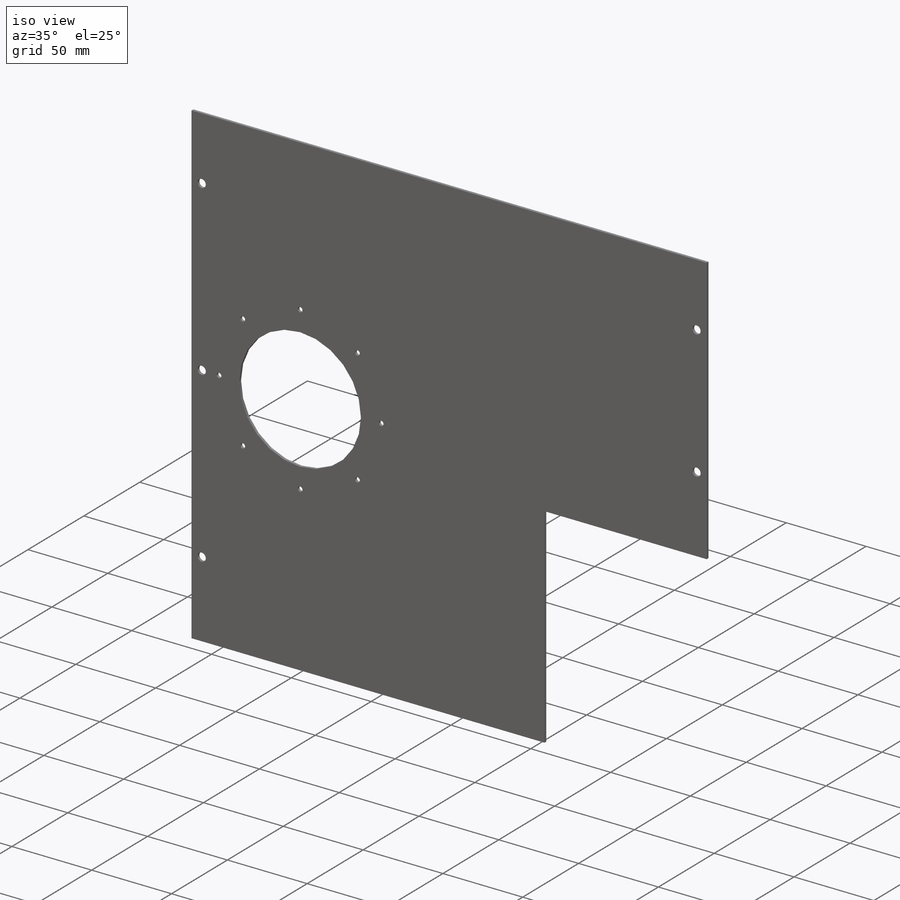
[diagram: iso view]
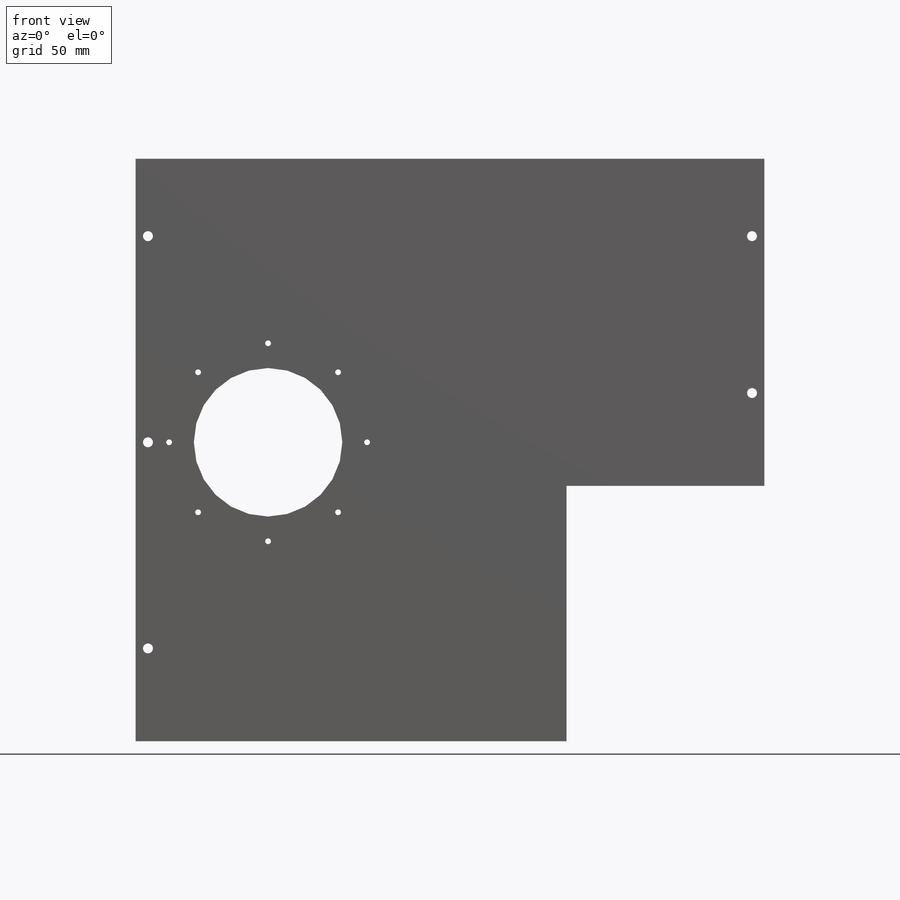
[diagram: front view]
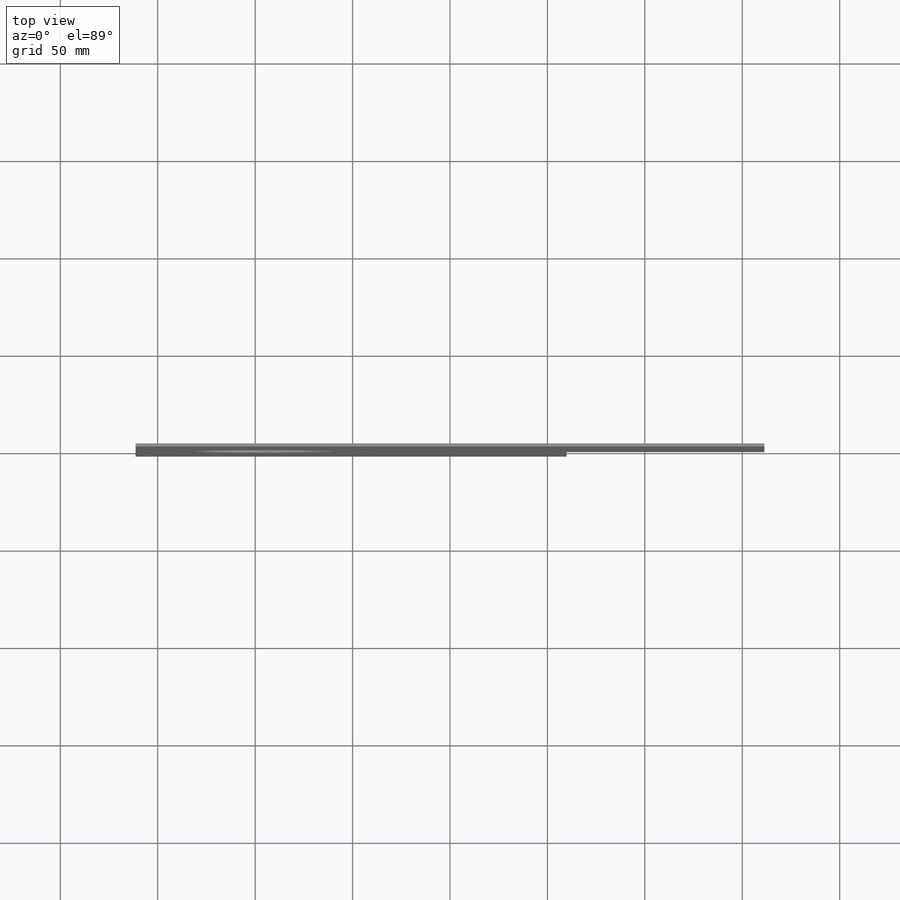
[diagram: top view]
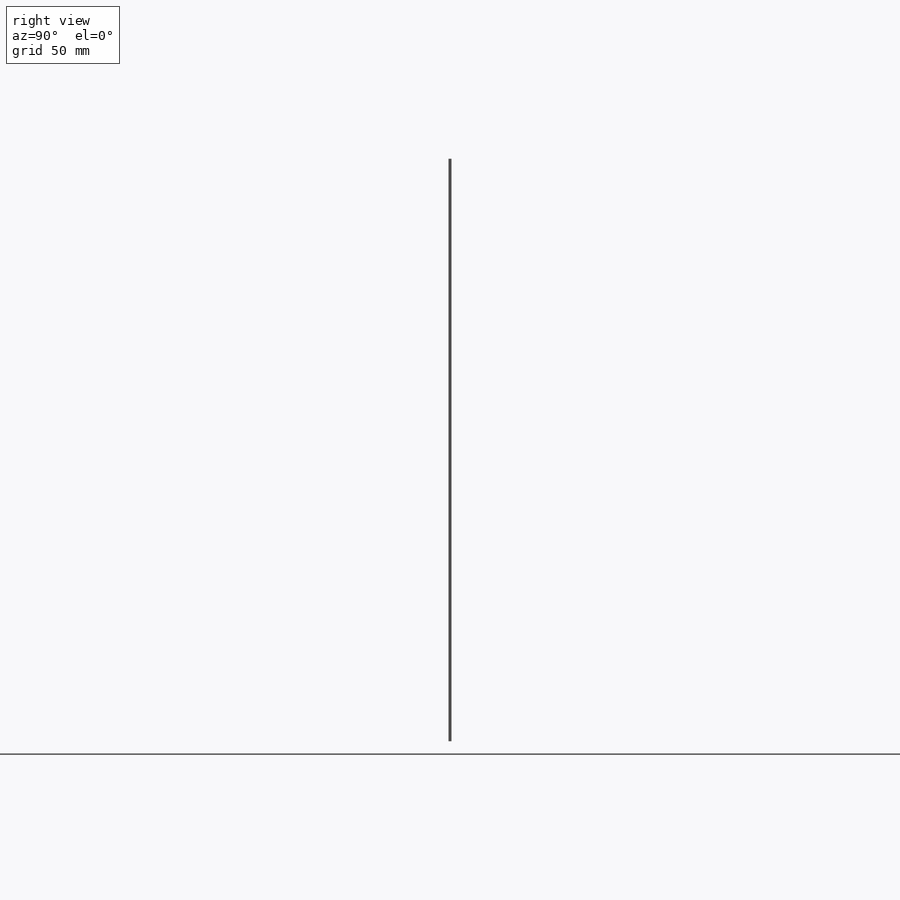
[diagram: right view]
SOLIDWORKS PART (.sldprt)
format: sldprt  version: not decoded by parser v0  size: 219,136 bytes
history: native  units: mm
features: sketch x7, hole x2, material x1, extrude x1, cut_extrude x1, pattern_circular x1 (+11 scaffold rows collapsed)
feature tree (24):
  scaffold x11  (default folders/planes/origin — collapsed)
  material  "6061-T6 (SS)"
  sketch  "Sketch1"  dims[D1=~298.896617mm D2=322.7254mm D3=131.064mm D4=101.6002mm D5=~153.410708mm]
  extrude  "Boss-Extrude1"  Depth=1.6002mm
  sketch  "Sketch2"  dims[D1=76.2mm D2=68.0mm]
  cut_extrude  "Cut-Extrude1"  [1 undecoded]
  sketch  "Sketch10"  dims[D1=50.8mm]
  hole  "#4 Clearance Hole1"  Diameter=2.9464mm Depth=172.97mm
  sketch  "Sketch12"
  sketch  "Sketch11"  dims[hole-wizard template sketch: 47 standard entries collapsed; hole parameters kept: c15.Hole Depth=172.97mm c15.D3=~14.816244mm c15.Drill Angle=118.0deg]
  pattern_circular  "CirPattern1"  Count=8 Angle=360deg
  hole  "#10 Clearance Hole1"  Diameter=5.1054mm Depth=129.53mm
  sketch  "Sketch14"  dims[D1=155.0mm D2=~105.785708mm D3=~25.278492mm]
  sketch  "Sketch13"  dims[hole-wizard template sketch: 47 standard entries collapsed; hole parameters kept: c15.Hole Depth=129.53mm c15.D3=~14.816244mm c15.Drill Angle=118.0deg]
decode coverage: 10 of 12 modeling features carry decoded parameters
note: ~ marks probable driven/reference dimensions
note: 1 parameter value undecoded
note: suppression state not decoded; provenance and decode notes live in map.json
